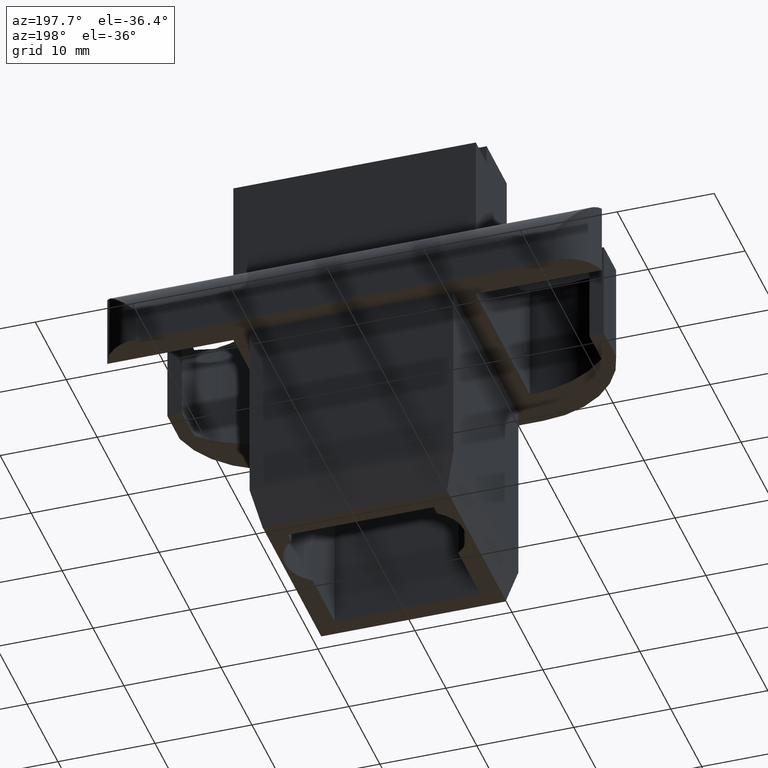
[diagram: clean part render]
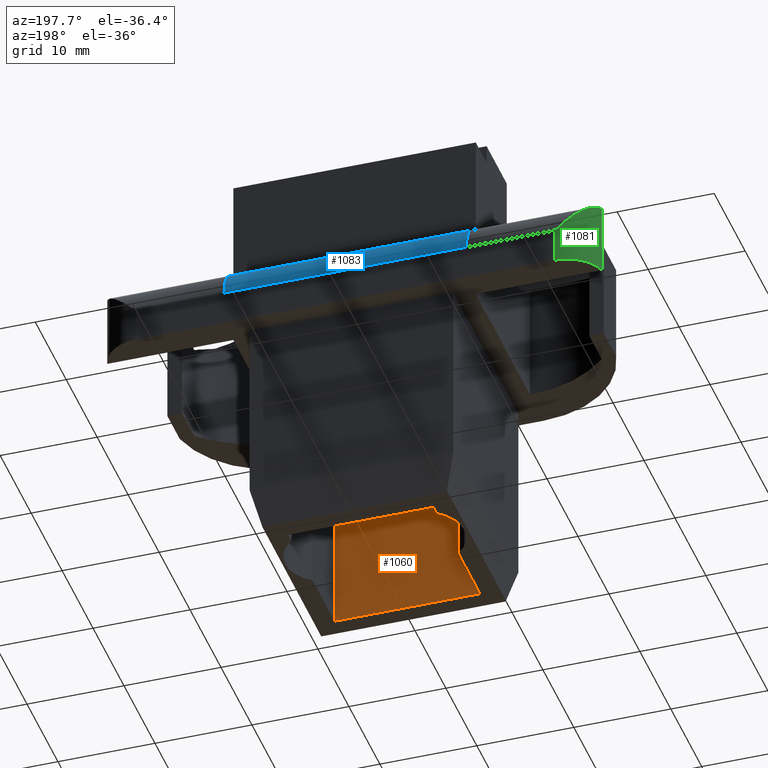
[diagram: same view with three faces highlighted in distinct colors, each labeled with its STEP entity id]
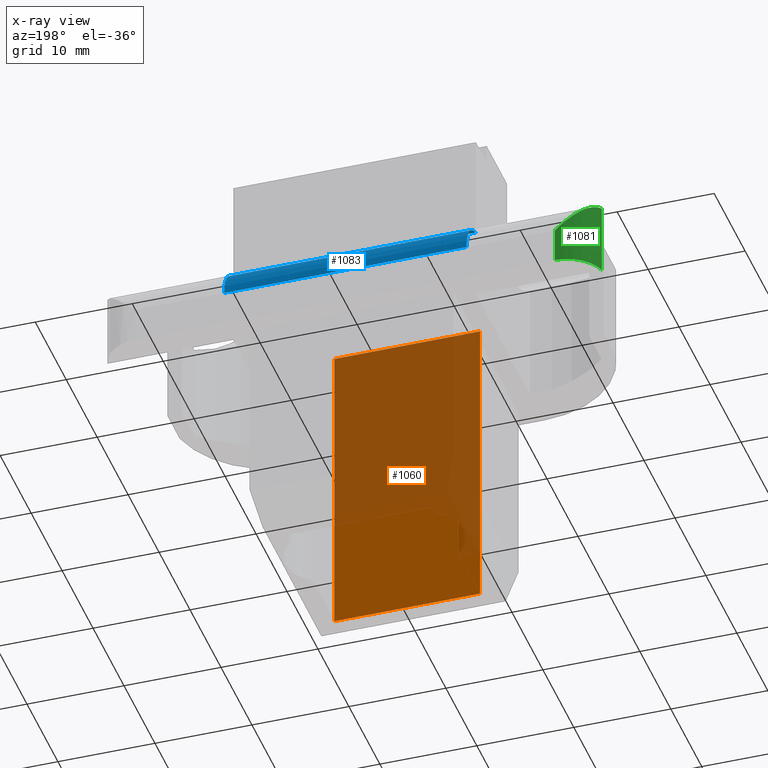
[diagram: x-ray of the same camera — body ghosted, the three highlighted faces saturated]
A machine part, auxiliary view with three faces highlighted in distinct colors.
The next image is the same camera in x-ray (body ghosted, the three faces saturated) — at least one of them is partly hidden behind the body in this view.
Their STEP definitions:

[orange] entity #1060 — the highlighted planar face has unit normal (0, -1, 0).
#88=FACE_OUTER_BOUND('',#151,.T.);
#151=EDGE_LOOP('',(#760,#761,#762,#763));
#213=LINE('',#1520,#333);
#231=LINE('',#1557,#351);
#236=LINE('',#1571,#356);
#238=LINE('',#1578,#358);
#333=VECTOR('',#1215,15.);
#351=VECTOR('',#1249,32.);
#356=VECTOR('',#1260,15.);
#358=VECTOR('',#1268,32.);
#453=VERTEX_POINT('',#1517);
#454=VERTEX_POINT('',#1519);
#465=VERTEX_POINT('',#1555);
#471=VERTEX_POINT('',#1569);
#554=EDGE_CURVE('',#453,#454,#213,.T.);
#573=EDGE_CURVE('',#453,#465,#231,.T.);
#580=EDGE_CURVE('',#465,#471,#236,.T.);
#584=EDGE_CURVE('',#454,#471,#238,.T.);
#760=ORIENTED_EDGE('',*,*,#554,.F.);
#761=ORIENTED_EDGE('',*,*,#573,.T.);
#762=ORIENTED_EDGE('',*,*,#580,.T.);
#763=ORIENTED_EDGE('',*,*,#584,.F.);
#1018=PLANE('',#1128);
#1060=ADVANCED_FACE('',(#88),#1018,.F.);
#1128=AXIS2_PLACEMENT_3D('',#1582,#1273,#1274);
#1215=DIRECTION('',(1.,0.,0.));
#1249=DIRECTION('',(0.,0.,1.));
#1260=DIRECTION('',(1.,0.,0.));
#1268=DIRECTION('',(0.,0.,1.));
#1273=DIRECTION('center_axis',(0.,-1.,0.));
#1274=DIRECTION('ref_axis',(1.,0.,0.));
#1517=CARTESIAN_POINT('',(-7.5,-7.5,-11.75));
#1519=CARTESIAN_POINT('',(7.5,-7.5,-11.75));
#1520=CARTESIAN_POINT('',(-3.75,-7.5,-11.75));
#1555=CARTESIAN_POINT('',(-7.5,-7.5,20.25));
#1557=CARTESIAN_POINT('',(-7.5,-7.5,-11.75));
#1569=CARTESIAN_POINT('',(7.5,-7.5,20.25));
#1571=CARTESIAN_POINT('',(-7.5,-7.5,20.25));
#1578=CARTESIAN_POINT('',(7.5,-7.5,-11.75));
#1582=CARTESIAN_POINT('Origin',(-7.5,-7.5,-11.75));

[blue] entity #1083 — the highlighted cylindrical surface (partial cylindrical patch) has radius 4 mm, axis along (-1, 0, 0).
#36=CYLINDRICAL_SURFACE('',#1167,4.);
#67=CIRCLE('',#1160,4.);
#69=CIRCLE('',#1166,4.);
#111=FACE_OUTER_BOUND('',#176,.T.);
#176=EDGE_LOOP('',(#862,#863,#864,#865));
#274=LINE('',#1704,#394);
#277=LINE('',#1716,#397);
#394=VECTOR('',#1374,25.);
#397=VECTOR('',#1389,25.);
#504=VERTEX_POINT('',#1692);
#505=VERTEX_POINT('',#1694);
#508=VERTEX_POINT('',#1702);
#511=VERTEX_POINT('',#1712);
#630=EDGE_CURVE('',#505,#504,#67,.T.);
#635=EDGE_CURVE('',#504,#508,#274,.T.);
#640=EDGE_CURVE('',#508,#511,#69,.T.);
#641=EDGE_CURVE('',#505,#511,#277,.T.);
#862=ORIENTED_EDGE('',*,*,#630,.T.);
#863=ORIENTED_EDGE('',*,*,#635,.T.);
#864=ORIENTED_EDGE('',*,*,#640,.T.);
#865=ORIENTED_EDGE('',*,*,#641,.F.);
#1083=ADVANCED_FACE('',(#111),#36,.T.);
#1160=AXIS2_PLACEMENT_3D('',#1695,#1366,#1367);
#1166=AXIS2_PLACEMENT_3D('',#1714,#1385,#1386);
#1167=AXIS2_PLACEMENT_3D('',#1715,#1387,#1388);
#1366=DIRECTION('center_axis',(-1.,0.,0.));
#1367=DIRECTION('ref_axis',(0.,0.25,0.968245836551854));
#1374=DIRECTION('',(-1.,0.,0.));
#1385=DIRECTION('center_axis',(1.,0.,-5.73316704659901E-16));
#1386=DIRECTION('ref_axis',(0.,1.,0.));
#1387=DIRECTION('center_axis',(-1.,0.,0.));
#1388=DIRECTION('ref_axis',(0.,0.25,0.968245836551854));
#1389=DIRECTION('',(-1.,0.,0.));
#1692=CARTESIAN_POINT('',(12.5,12.5,15.3770166537926));
#1694=CARTESIAN_POINT('',(12.5,9.5,19.25));
#1695=CARTESIAN_POINT('Origin',(12.5,8.5,15.3770166537926));
#1702=CARTESIAN_POINT('',(-12.5,12.5,15.3770166537926));
#1704=CARTESIAN_POINT('',(12.5,12.5,15.3770166537926));
#1712=CARTESIAN_POINT('',(-12.5,9.5,19.25));
#1714=CARTESIAN_POINT('Origin',(-12.5,8.5,15.3770166537926));
#1715=CARTESIAN_POINT('Origin',(12.5,8.5,15.3770166537926));
#1716=CARTESIAN_POINT('',(12.5,9.5,19.25));

[green] entity #1081 — the highlighted cylindrical surface (partial cylindrical patch) has radius 4 mm, axis along (0, 0, -1).
#17=ELLIPSE('',#1163,5.65685424949238,4.);
#34=CYLINDRICAL_SURFACE('',#1162,4.);
#68=CIRCLE('',#1164,4.);
#109=FACE_OUTER_BOUND('',#174,.T.);
#174=EDGE_LOOP('',(#854,#855,#856,#857));
#272=LINE('',#1701,#392);
#275=LINE('',#1710,#395);
#392=VECTOR('',#1372,3.62701665379258);
#395=VECTOR('',#1381,7.5);
#506=VERTEX_POINT('',#1698);
#507=VERTEX_POINT('',#1700);
#509=VERTEX_POINT('',#1706);
#510=VERTEX_POINT('',#1708);
#633=EDGE_CURVE('',#507,#506,#272,.T.);
#636=EDGE_CURVE('',#509,#507,#17,.T.);
#637=EDGE_CURVE('',#506,#510,#68,.T.);
#638=EDGE_CURVE('',#509,#510,#275,.T.);
#854=ORIENTED_EDGE('',*,*,#636,.T.);
#855=ORIENTED_EDGE('',*,*,#633,.T.);
#856=ORIENTED_EDGE('',*,*,#637,.T.);
#857=ORIENTED_EDGE('',*,*,#638,.F.);
#1081=ADVANCED_FACE('',(#109),#34,.T.);
#1162=AXIS2_PLACEMENT_3D('',#1705,#1375,#1376);
#1163=AXIS2_PLACEMENT_3D('',#1707,#1377,#1378);
#1164=AXIS2_PLACEMENT_3D('',#1709,#1379,#1380);
#1372=DIRECTION('',(0.,0.,-1.));
#1375=DIRECTION('center_axis',(0.,0.,-1.));
#1376=DIRECTION('ref_axis',(-0.968245836551854,0.25,0.));
#1377=DIRECTION('center_axis',(-0.707106781186548,0.,-0.707106781186548));
#1378=DIRECTION('ref_axis',(-0.707106781186547,0.,0.707106781186547));
#1379=DIRECTION('center_axis',(0.,0.,1.));
#1380=DIRECTION('ref_axis',(-0.968245836551854,0.25,0.));
#1381=DIRECTION('',(0.,0.,-1.));
#1698=CARTESIAN_POINT('',(-21.6270166537926,12.5,11.75));
#1700=CARTESIAN_POINT('',(-21.6270166537926,12.5,15.3770166537926));
#1701=CARTESIAN_POINT('',(-21.6270166537926,12.5,19.25));
#1705=CARTESIAN_POINT('Origin',(-21.6270166537926,8.5,19.25));
#1706=CARTESIAN_POINT('',(-25.5,9.5,19.25));
#1707=CARTESIAN_POINT('Origin',(-21.6270166537926,8.5,15.3770166537926));
#1708=CARTESIAN_POINT('',(-25.5,9.5,11.75));
#1709=CARTESIAN_POINT('Origin',(-21.6270166537926,8.5,11.75));
#1710=CARTESIAN_POINT('',(-25.5,9.5,19.25));